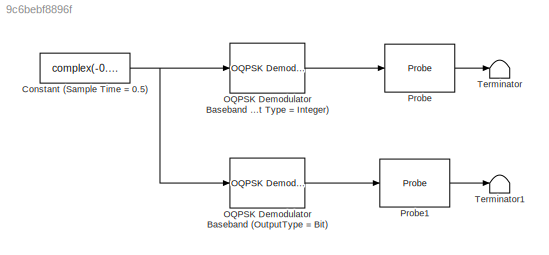
MODEL slx_9c6bebf8896f
KIND model
BLOCK [Constant] Constant (Sample Time = 0.5)
  SampleTime = 0.5
  Value = complex(-0.5,1)
  VectorParams1D = off
BLOCK [Reference] OQPSK Demodulator Baseband (Output Type = Integer)  REF=commdigbbndpm3/OQPSK
Demodulator
Baseband
  OutType = Integer
  Ph = 0
  Ports = [1, 1]
  RateOptions = Allow multirate processing
  SourceBlock = commdigbbndpm3/OQPSK\nDemodulator\nBaseband
  SourceType = OQPSK Demodulator Baseband
  UserDataPersistent = on
  accumFracLength = 15
  accumMode = Inherit via internal rule
  accumWordLength = 32
  derotateFactorDTMode = Same word length as input
  derotateFactorWordLen = 16
  mappingInputFracLength = 15
  mappingInputMode = Same as accumulator
  mappingInputWordLength = 32
  outDtype1 = Inherit via internal rule
  outDtype2 = double
  overflowMode = Wrap
  roundingMode = Floor
BLOCK [Reference] OQPSK Demodulator Baseband (OutputType = Bit)  REF=commdigbbndpm3/OQPSK
Demodulator
Baseband
  OutType = Bit
  Ph = 0
  Ports = [1, 1]
  RateOptions = Allow multirate processing
  SourceBlock = commdigbbndpm3/OQPSK\nDemodulator\nBaseband
  SourceType = OQPSK Demodulator Baseband
  UserDataPersistent = on
  accumFracLength = 15
  accumMode = Inherit via internal rule
  accumWordLength = 32
  derotateFactorDTMode = Same word length as input
  derotateFactorWordLen = 16
  mappingInputFracLength = 15
  mappingInputMode = Same as accumulator
  mappingInputWordLength = 32
  outDtype1 = double
  outDtype2 = double
  overflowMode = Wrap
  roundingMode = Floor
BLOCK [Probe] Probe
  Ports = [1, 1]
  ProbeComplexSignal = off
  ProbeWidth = off
BLOCK [Probe] Probe1
  Ports = [1, 1]
  ProbeComplexSignal = off
  ProbeWidth = off
BLOCK [Terminator] Terminator
BLOCK [Terminator] Terminator1
NET Constant (Sample Time = 0.5):1 -> OQPSK Demodulator Baseband (Output Type = Integer):1, OQPSK Demodulator Baseband (OutputType = Bit):1
LINE OQPSK Demodulator Baseband (Output Type = Integer):1 -> Probe:1
LINE OQPSK Demodulator Baseband (OutputType = Bit):1 -> Probe1:1
LINE Probe1:1 -> Terminator1:1
LINE Probe:1 -> Terminator:1
note: NET lines group one-source signal fan-out (src -> all destinations, sorted); 1:1 wires keep LINE
